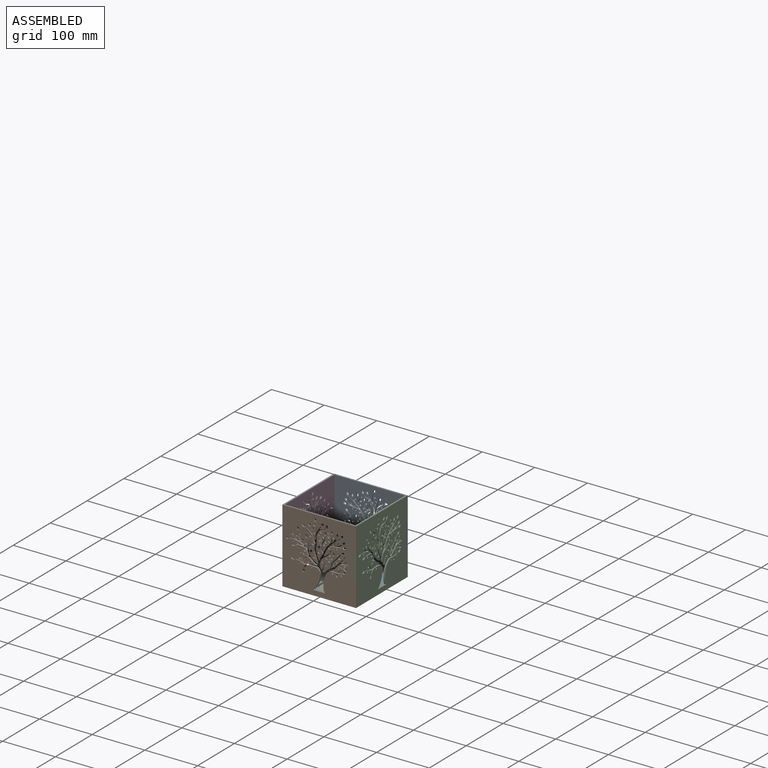
[diagram: assembled view]
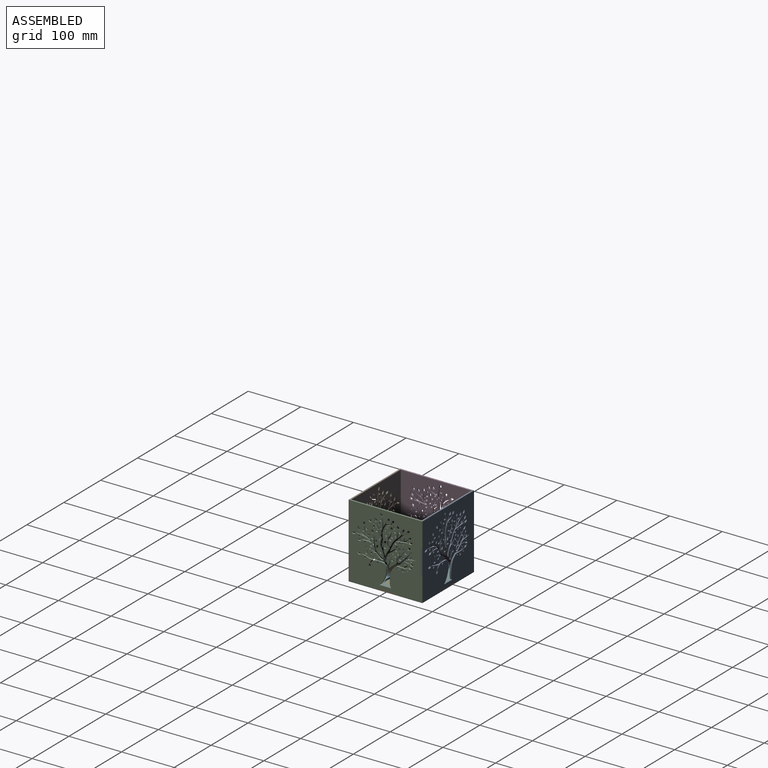
[diagram: assembled view, second angle]
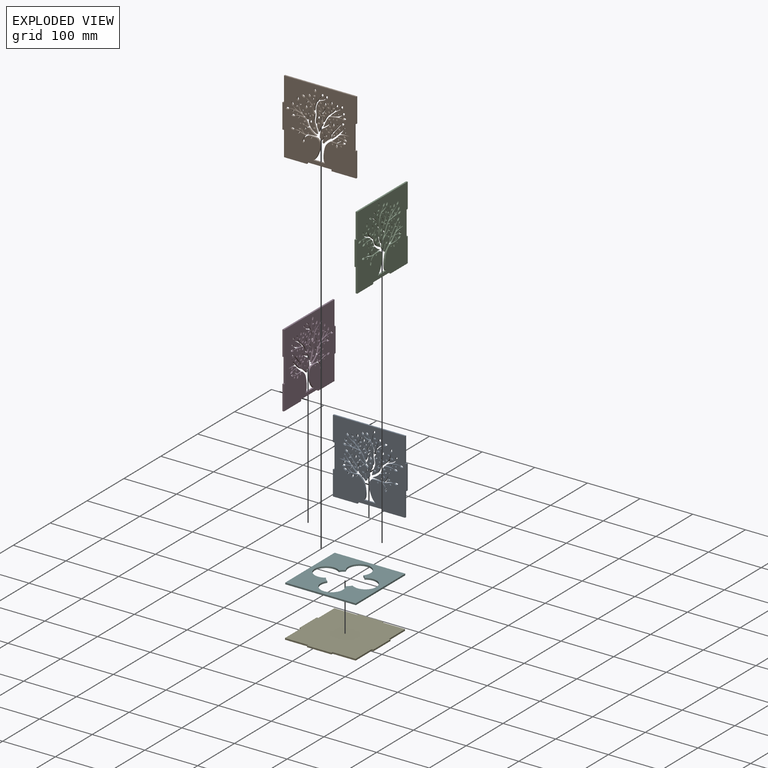
[diagram: exploded view]
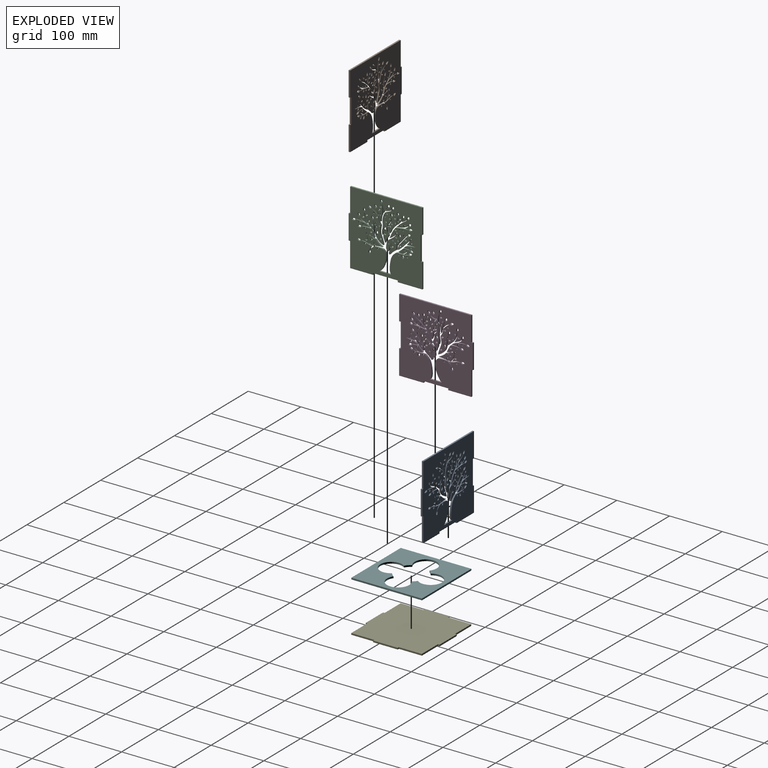
[diagram: exploded view, second angle]
ASSEMBLY  parts=6 mates=5
PART A: 459 faces, bbox 140.9x3.9x140.9 mm
  f0: plane 43.67x3mm, normal (0,0,-1), area 131mm2, adj f5,f6,f449,f455
  f1: plane 46.67x3mm, normal (0,0,-1), area 140mm2, adj f2,f5,f6,f450
  f2: plane 46.67x3mm, normal (1,0,0), area 140mm2, adj f1,f5,f6,f452
  f3: plane 137x3mm, normal (0,0,1), area 411.1mm2, adj f5,f6,f7,f458
  f4: plane 46.67x3mm, normal (-1,0,0), area 140mm2, adj f5,f6,f456,f457
  f5: plane 140.94x140.94mm, normal (0,1,0), area 16264.7mm2, adj f0,f1,f2,f3,f4,f7,f8,f9
  f6: plane 140.94x140.94mm, normal (0,-1,0), area 16264.7mm2, adj f0,f1,f2,f3,f4,f7,f8,f9
  f7: plane 46.67x3mm, normal (1,0,0), area 140mm2, adj f3,f5,f6,f453
  f8: plane 22.28x3mm, normal (0,0,1), area 66.8mm2, adj f5,f6,f9,f111
  f9: extruded ~40.23x12.65mm, area 135.4mm2, adj f5,f6,f8,f10
  f10: extruded ~23.3x3mm, area 71.7mm2, adj f5,f6,f9,f11
  f11: extruded ~8.66x3mm, area 26.6mm2, adj f5,f6,f10,f12
  f12: extruded ~6.19x5.5mm, area 25.3mm2, adj f5,f6,f11,f13
  f13: extruded ~7.73x5mm, area 27.6mm2, adj f5,f6,f12,f14
  f14: extruded ~9.4x3mm, area 29mm2, adj f5,f6,f13,f15
  f15: extruded ~9.97x8.71mm, area 39.8mm2, adj f5,f6,f14,f16
  f16: extruded ~12.2x3mm, area 36.7mm2, adj f5,f6,f15,f17
  f17: extruded ~11.38x3mm, area 35mm2, adj f5,f6,f16,f18
  f18: extruded ~22.06x6.69mm, area 71.1mm2, adj f5,f6,f17,f19
  f19: extruded ~16.68x3mm, area 50.2mm2, adj f5,f6,f18,f20
  f20: extruded ~8.61x5.69mm, area 31.1mm2, adj f5,f6,f19,f21
  f21: extruded ~22.88x21.66mm, area 94.9mm2, adj f5,f6,f20,f22
  f22: extruded ~8.98x3mm, area 28.3mm2, adj f5,f6,f21,f23
  f23: extruded ~19.17x16.04mm, area 75mm2, adj f5,f6,f22,f24
  f24: extruded ~15.61x15.07mm, area 65.9mm2, adj f5,f6,f23,f25
  f25: extruded ~8.88x3mm, area 26.8mm2, adj f5,f6,f24,f26
  f26: extruded ~14.17x3.97mm, area 44.7mm2, adj f5,f6,f25,f27
  f27: extruded ~8.78x4.98mm, area 31.3mm2, adj f5,f6,f26,f28
  f28: extruded ~17.08x3.3mm, area 53.8mm2, adj f5,f6,f27,f29
  f29: extruded ~12.63x11.01mm, area 50.5mm2, adj f5,f6,f28,f30
  f30: extruded ~3x2.39mm, area 9.4mm2, adj f5,f6,f29,f31
  f31: extruded ~17.76x4.62mm, area 55.5mm2, adj f5,f6,f30,f32
  f32: extruded ~7.74x3mm, area 25.2mm2, adj f5,f6,f31,f33
  f33: extruded ~3.95x3mm, area 12.6mm2, adj f5,f6,f32,f34
  f34: extruded ~11.94x3mm, area 37.9mm2, adj f5,f6,f33,f35
  f35: extruded ~5.12x3.73mm, area 19.4mm2, adj f5,f6,f34,f36
  f36: extruded ~27.92x18.38mm, area 106.5mm2, adj f5,f6,f35,f37
  f37: extruded ~11.59x9.17mm, area 44.9mm2, adj f5,f6,f36,f38
  f38: extruded ~20.39x11.12mm, area 70.1mm2, adj f5,f6,f37,f39
  f39: extruded ~25.62x3mm, area 77.4mm2, adj f5,f6,f38,f40
  f40: extruded ~6.92x3mm, area 21mm2, adj f5,f6,f39,f41
  f41: extruded ~5.79x5.08mm, area 23.6mm2, adj f5,f6,f40,f42
  f42: extruded ~22.45x6.98mm, area 71.2mm2, adj f5,f6,f41,f43
  f43: extruded ~19.93x17.49mm, area 80.2mm2, adj f5,f6,f42,f44
  f44: extruded ~10.24x6.33mm, area 36.5mm2, adj f5,f6,f43,f45
  f45: extruded ~5.62x3mm, area 17.9mm2, adj f5,f6,f44,f46
  f46: extruded ~12.68x9.57mm, area 47.8mm2, adj f5,f6,f45,f47
  f47: extruded ~15.11x3mm, area 45.9mm2, adj f5,f6,f46,f48
  f48: extruded ~9.34x3mm, area 28.4mm2, adj f5,f6,f47,f49
  f49: extruded ~8.58x4.44mm, area 29.4mm2, adj f5,f6,f48,f50
  f50: extruded ~16.28x3.45mm, area 51.4mm2, adj f5,f6,f49,f51
  f51: extruded ~16.9x12.53mm, area 63.9mm2, adj f5,f6,f50,f52
  f52: extruded ~13.63x3mm, area 42.5mm2, adj f5,f6,f51,f53
  f53: extruded ~15.28x5.42mm, area 49.6mm2, adj f5,f6,f52,f54
  f54: extruded ~12.97x5.73mm, area 42.7mm2, adj f5,f6,f53,f55
  f55: extruded ~9.53x5.63mm, area 34mm2, adj f5,f6,f54,f56
  f56: extruded ~14.55x3.82mm, area 45.8mm2, adj f5,f6,f55,f57
  f57: extruded ~6.19x4.73mm, area 23.8mm2, adj f5,f6,f56,f58
  f58: extruded ~6.55x5.63mm, area 26mm2, adj f5,f6,f57,f59
  f59: extruded ~12.13x3.18mm, area 38.9mm2, adj f5,f6,f58,f60
  f60: extruded ~3.39x3mm, area 10.9mm2, adj f5,f6,f59,f61
  f61: extruded ~11.8x5.77mm, area 39.9mm2, adj f5,f6,f60,f62
  f62: extruded ~8.45x3.46mm, area 27.4mm2, adj f5,f6,f61,f63
  f63: extruded ~12.4x3mm, area 37.5mm2, adj f5,f6,f62,f64
  f64: extruded ~8.21x3mm, area 26.4mm2, adj f5,f6,f63,f65
  f65: extruded ~8.28x3mm, area 25.3mm2, adj f5,f6,f64,f66
  f66: extruded ~30.06x4.8mm, area 92.8mm2, adj f5,f6,f65,f67
  f67: extruded ~13.58x8.58mm, area 49.3mm2, adj f5,f6,f66,f68
  f68: extruded ~11.89x4.77mm, area 38.7mm2, adj f5,f6,f67,f69
  f69: extruded ~6.81x3.25mm, area 22.7mm2, adj f5,f6,f68,f70
  f70: extruded ~11.43x7.51mm, area 41.2mm2, adj f5,f6,f69,f71
  f71: extruded ~21.61x3.03mm, area 117mm2, adj f5,f6,f70,f72
  f72: extruded ~13.53x3mm, area 41.5mm2, adj f5,f6,f71,f73
  f73: extruded ~11.26x3.98mm, area 36.1mm2, adj f5,f6,f72,f74
  f74: extruded ~12.5x4.47mm, area 40.1mm2, adj f5,f6,f73,f75
  f75: extruded ~11.06x3mm, area 34.1mm2, adj f5,f6,f74,f76
  f76: extruded ~4.04x4.02mm, area 17.2mm2, adj f5,f6,f75,f77
  f77: extruded ~8.22x4.22mm, area 27.8mm2, adj f5,f6,f76,f78
  f78: extruded ~12.54x10.78mm, area 49.9mm2, adj f5,f6,f77,f79
  f79: extruded ~13.55x5.38mm, area 44.4mm2, adj f5,f6,f78,f80
  f80: extruded ~14x3mm, area 42.4mm2, adj f5,f6,f79,f81
  f81: extruded ~19.07x6.28mm, area 60.3mm2, adj f5,f6,f80,f82
  f82: extruded ~17.23x15.96mm, area 74.2mm2, adj f5,f6,f81,f83
  f83: extruded ~18.98x3.42mm, area 59.4mm2, adj f5,f6,f82,f84
  f84: extruded ~4.82x4.15mm, area 19.4mm2, adj f5,f6,f83,f85
  f85: extruded ~7.31x3mm, area 23.2mm2, adj f5,f6,f84,f86
  f86: extruded ~18.63x3mm, area 56.3mm2, adj f5,f6,f85,f87
  f87: extruded ~9.01x7.99mm, area 36.1mm2, adj f5,f6,f86,f88
  f88: extruded ~19.55x8.76mm, area 65.1mm2, adj f5,f6,f87,f89
  f89: extruded ~18.3x5.55mm, area 59mm2, adj f5,f6,f88,f90
  f90: extruded ~15x7.79mm, area 51.3mm2, adj f5,f6,f89,f91
  f91: extruded ~7.7x6.66mm, area 31.3mm2, adj f5,f6,f90,f92
  f92: extruded ~15.1x3mm, area 45.9mm2, adj f5,f6,f91,f93
  f93: extruded ~18.61x3mm, area 56.3mm2, adj f5,f6,f92,f94
  f94: extruded ~8.68x4.77mm, area 30mm2, adj f5,f6,f93,f95
  f95: extruded ~16.12x3mm, area 49.5mm2, adj f5,f6,f94,f96
  f96: extruded ~18.27x3mm, area 55.1mm2, adj f5,f6,f95,f97
  f97: extruded ~13.06x7.11mm, area 44.7mm2, adj f5,f6,f96,f98
  f98: extruded ~7.57x3mm, area 23.1mm2, adj f5,f6,f97,f99
  f99: extruded ~6.21x3mm, area 19.8mm2, adj f5,f6,f98,f100
  f100: extruded ~3.35x3mm, area 13.4mm2, adj f5,f6,f99,f101
  f101: extruded ~6.1x3mm, area 19.2mm2, adj f5,f6,f100,f102
  f102: extruded ~13.82x10.29mm, area 52.1mm2, adj f5,f6,f101,f103
  f103: extruded ~22.95x3mm, area 69.1mm2, adj f5,f6,f102,f104
  f104: extruded ~14.62x6.51mm, area 48.6mm2, adj f5,f6,f103,f105
  f105: extruded ~14.21x4.39mm, area 45.8mm2, adj f5,f6,f104,f106
  f106: extruded ~16.5x3mm, area 51.1mm2, adj f5,f6,f105,f107
  f107: extruded ~22.75x4.04mm, area 70mm2, adj f5,f6,f106,f108
  f108: extruded ~8.29x5.61mm, area 31.5mm2, adj f5,f6,f107,f109
  f109: extruded ~8.97x8.52mm, area 37.6mm2, adj f5,f6,f108,f110
  f110: extruded ~17.66x3mm, area 53.3mm2, adj f5,f6,f109,f111
  f111: extruded ~39.07x12.75mm, area 132.2mm2, adj f5,f6,f8,f110
  f112: plane 3x0mm, normal (0,0,-1), area 0mm2, adj f5,f6,f113,f116
  f113: extruded ~7.19x3mm, area 24.2mm2, adj f5,f6,f112,f114
  f114: extruded ~3x1.75mm, area 11.5mm2, adj f5,f6,f113,f115
  f115: extruded ~4.46x3mm, area 13.7mm2, adj f5,f6,f114,f116
  f116: extruded ~3x2.61mm, area 10.5mm2, adj f5,f6,f112,f115
  f117: extruded ~3x2.16mm, area 6.7mm2, adj f5,f6,f118,f120
  f118: extruded ~3.42x3.12mm, area 15.5mm2, adj f5,f6,f117,f119
  f119: extruded ~3x1.22mm, area 7.4mm2, adj f5,f6,f118,f120
  f120: extruded ~3x2.33mm, area 8.8mm2, adj f5,f6,f117,f119
  f121: extruded ~3x1.79mm, area 6.7mm2, adj f5,f6,f122,f124
  f122: extruded ~4.6x3mm, area 15.5mm2, adj f5,f6,f121,f123
  f123: extruded ~3x1.1mm, area 7.4mm2, adj f5,f6,f122,f124
  f124: extruded ~3x2.83mm, area 8.8mm2, adj f5,f6,f121,f123
  f125: extruded ~3.18x3mm, area 10.5mm2, adj f5,f6,f126,f128
  f126: extruded ~6.22x3.84mm, area 24.2mm2, adj f5,f6,f125,f127
  f127: extruded ~3x1.81mm, area 11.5mm2, adj f5,f6,f126,f128
  f128: extruded ~4.1x3mm, area 13.7mm2, adj f5,f6,f125,f127
  f129: extruded ~3x2.04mm, area 6.7mm2, adj f5,f6,f130,f132
  f130: extruded ~3.98x3mm, area 15.5mm2, adj f5,f6,f129,f131
  f131: extruded ~3x1.16mm, area 7.4mm2, adj f5,f6,f130,f132
  f132: extruded ~3x2.63mm, area 8.8mm2, adj f5,f6,f129,f131
  f133: extruded ~3x2.05mm, area 6.7mm2, adj f5,f6,f134,f136
  f134: extruded ~3.97x3mm, area 15.5mm2, adj f5,f6,f133,f135
  f135: extruded ~3x1.16mm, area 7.4mm2, adj f5,f6,f134,f136
  f136: extruded ~3x2.62mm, area 8.8mm2, adj f5,f6,f133,f135
  f137: extruded ~3x2.05mm, area 6.7mm2, adj f5,f6,f138,f140
  f138: extruded ~3.97x3mm, area 15.5mm2, adj f5,f6,f137,f139
  f139: extruded ~3x1.16mm, area 7.4mm2, adj f5,f6,f138,f140
  f140: extruded ~3x2.62mm, area 8.8mm2, adj f5,f6,f137,f139
  f141: extruded ~3x2.18mm, area 6.7mm2, adj f5,f6,f142,f144
  f142: extruded ~3.58x3mm, area 15.5mm2, adj f5,f6,f141,f143
  f143: extruded ~3x1.25mm, area 7.4mm2, adj f5,f6,f142,f144
  f144: extruded ~3x2.05mm, area 8.8mm2, adj f5,f6,f141,f143
  f145: extruded ~3x2.05mm, area 6.7mm2, adj f5,f6,f146,f148
  f146: extruded ~3.97x3mm, area 15.5mm2, adj f5,f6,f145,f147
  f147: extruded ~3x1.16mm, area 7.4mm2, adj f5,f6,f146,f148
  f148: extruded ~3x2.62mm, area 8.8mm2, adj f5,f6,f145,f147
  f149: plane 3x0mm, normal (0,0,-1), area 0mm2, adj f5,f6,f150,f153
  f150: extruded ~7.19x3mm, area 24.2mm2, adj f5,f6,f149,f151
  f151: extruded ~3x1.75mm, area 11.5mm2, adj f5,f6,f150,f152
  f152: extruded ~4.46x3mm, area 13.7mm2, adj f5,f6,f151,f153
  f153: extruded ~3x2.61mm, area 10.5mm2, adj f5,f6,f149,f152
  f154: extruded ~3x1.66mm, area 6.7mm2, adj f5,f6,f155,f157
  f155: extruded ~4.54x3mm, area 15.5mm2, adj f5,f6,f154,f156
  f156: extruded ~3x1.17mm, area 7.4mm2, adj f5,f6,f155,f157
  f157: extruded ~3x2.87mm, area 8.8mm2, adj f5,f6,f154,f156
  f158: extruded ~3x2.04mm, area 6.7mm2, adj f5,f6,f159,f161
  f159: extruded ~4.37x3mm, area 15.5mm2, adj f5,f6,f158,f160
  f160: extruded ~3x1.22mm, area 7.4mm2, adj f5,f6,f159,f161
  f161: extruded ~3x2.61mm, area 8.8mm2, adj f5,f6,f158,f160
  f162: extruded ~3x2.17mm, area 6.7mm2, adj f5,f6,f163,f165
  f163: extruded ~3.75x3mm, area 15.5mm2, adj f5,f6,f162,f164
  f164: extruded ~3x1.26mm, area 7.4mm2, adj f5,f6,f163,f165
  f165: extruded ~3x2.14mm, area 8.8mm2, adj f5,f6,f162,f164
  f166: extruded ~3x2.01mm, area 6.7mm2, adj f5,f6,f167,f169
  f167: extruded ~4.42x3mm, area 15.5mm2, adj f5,f6,f166,f168
  f168: extruded ~3x1.21mm, area 7.4mm2, adj f5,f6,f167,f169
  f169: extruded ~3x2.65mm, area 8.8mm2, adj f5,f6,f166,f168
  f170: extruded ~3x2.02mm, area 6.7mm2, adj f5,f6,f171,f173
  f171: extruded ~4.4x3mm, area 15.5mm2, adj f5,f6,f170,f172
  f172: extruded ~3x1.21mm, area 7.4mm2, adj f5,f6,f171,f173
  f173: extruded ~3x2.64mm, area 8.8mm2, adj f5,f6,f170,f172
  f174: extruded ~3x1.74mm, area 6.7mm2, adj f5,f6,f175,f177
  f175: extruded ~4.61x3mm, area 15.5mm2, adj f5,f6,f174,f176
  f176: extruded ~3x1.1mm, area 7.4mm2, adj f5,f6,f175,f177
  f177: extruded ~3x2.84mm, area 8.8mm2, adj f5,f6,f174,f176
  f178: extruded ~3x1.95mm, area 6.7mm2, adj f5,f6,f179,f181
  f179: extruded ~4.2x3mm, area 15.5mm2, adj f5,f6,f178,f180
  f180: extruded ~3x1.18mm, area 7.4mm2, adj f5,f6,f179,f181
  f181: extruded ~3x2.74mm, area 8.8mm2, adj f5,f6,f178,f180
  f182: extruded ~3x2.01mm, area 6.7mm2, adj f5,f6,f183,f185
  f183: extruded ~4.42x3mm, area 15.5mm2, adj f5,f6,f182,f184
  f184: extruded ~3x1.21mm, area 7.4mm2, adj f5,f6,f183,f185
  f185: extruded ~3x2.65mm, area 8.8mm2, adj f5,f6,f182,f184
  f186: extruded ~3x1.72mm, area 6.7mm2, adj f5,f6,f187,f189
  f187: extruded ~4.61x3mm, area 15.5mm2, adj f5,f6,f186,f188
  f188: extruded ~3x1.11mm, area 7.4mm2, adj f5,f6,f187,f189
  f189: extruded ~3x2.85mm, area 8.8mm2, adj f5,f6,f186,f188
  f190: plane 3x0mm, normal (0,0,-1), area 0mm2, adj f191,f194
  f191: extruded ~7.19x3mm, area 24.2mm2, adj f5,f6,f190,f192
  f192: extruded ~3x1.75mm, area 11.5mm2, adj f5,f6,f191,f193
  f193: extruded ~4.46x3mm, area 13.7mm2, adj f5,f6,f192,f194
  f194: extruded ~3x2.61mm, area 10.5mm2, adj f5,f6,f190,f193
  f195: extruded ~3x1.81mm, area 6.7mm2, adj f5,f6,f196,f198
  f196: extruded ~4.42x3mm, area 15.5mm2, adj f5,f6,f195,f197
  f197: extruded ~3x1.18mm, area 7.4mm2, adj f5,f6,f196,f198
  f198: extruded ~3x2.83mm, area 8.8mm2, adj f5,f6,f195,f197
  f199: plane 3x0mm, normal (-0.84,0,-0.55), area 0mm2, adj f200,f203
  f200: extruded ~6.26x3.78mm, area 24.2mm2, adj f5,f6,f199,f201
  f201: extruded ~3x1.81mm, area 11.5mm2, adj f5,f6,f200,f202
  f202: extruded ~4.12x3mm, area 13.7mm2, adj f5,f6,f201,f203
  f203: extruded ~3.17x3mm, area 10.5mm2, adj f5,f6,f199,f202
  f204: extruded ~6.31x3.29mm, area 23.3mm2, adj f5,f6,f205,f207
  f205: plane 3x0.33mm, normal (0,0,-1), area 1mm2, adj f5,f6,f204,f206
  f206: extruded ~6.86x3mm, area 23.9mm2, adj f5,f6,f205,f207
  f207: extruded ~3x1.84mm, area 11.5mm2, adj f5,f6,f204,f206
  f208: plane 3x0mm, normal (-0.75,0,-0.66), area 0mm2, adj f5,f6,f209,f212
  f209: extruded ~5.32x4.87mm, area 24.2mm2, adj f5,f6,f208,f210
  f210: extruded ~3x1.9mm, area 11.5mm2, adj f5,f6,f209,f211
  f211: extruded ~3.63x3mm, area 13.7mm2, adj f5,f6,f210,f212
  f212: extruded ~3.36x3mm, area 10.5mm2, adj f5,f6,f208,f211
  f213: extruded ~3x2.17mm, area 6.7mm2, adj f5,f6,f214,f216
  f214: extruded ~3.75x3mm, area 15.5mm2, adj f5,f6,f213,f215
  f215: extruded ~3x1.26mm, area 7.4mm2, adj f5,f6,f214,f216
  f216: extruded ~3x2.14mm, area 8.8mm2, adj f5,f6,f213,f215
  f217: extruded ~3x2.04mm, area 6.7mm2, adj f5,f6,f218,f220
  f218: extruded ~4.37x3mm, area 15.5mm2, adj f5,f6,f217,f219
  f219: extruded ~3x1.22mm, area 7.4mm2, adj f5,f6,f218,f220
  f220: extruded ~3x2.61mm, area 8.8mm2, adj f5,f6,f217,f219
  f221: extruded ~3x1.95mm, area 6.7mm2, adj f5,f6,f222,f224
  f222: extruded ~4.2x3mm, area 15.5mm2, adj f5,f6,f221,f223
  f223: extruded ~3x1.18mm, area 7.4mm2, adj f5,f6,f222,f224
  f224: extruded ~3x2.74mm, area 8.8mm2, adj f5,f6,f221,f223
  f225: extruded ~3x2.11mm, area 6.7mm2, adj f5,f6,f226,f228
  f226: extruded ~3.75x3mm, area 15.5mm2, adj f5,f6,f225,f227
  f227: extruded ~3x1.18mm, area 7.4mm2, adj f5,f6,f226,f228
  f228: extruded ~3x2.51mm, area 8.8mm2, adj f5,f6,f225,f227
  f229: extruded ~3x2.14mm, area 6.7mm2, adj f5,f6,f230,f232
  f230: extruded ~4.05x3mm, area 15.5mm2, adj f5,f6,f229,f231
  f231: extruded ~3x1.25mm, area 7.4mm2, adj f5,f6,f230,f232
  f232: extruded ~3x2.36mm, area 8.8mm2, adj f5,f6,f229,f231
  f233: extruded ~3x2.18mm, area 6.7mm2, adj f5,f6,f234,f236
  f234: extruded ~3.42x3.12mm, area 15.5mm2, adj f5,f6,f233,f235
  f235: extruded ~3x1.24mm, area 7.4mm2, adj f5,f6,f234,f236
  f236: extruded ~3x2.16mm, area 8.8mm2, adj f5,f6,f233,f235
  f237: extruded ~3x2.15mm, area 6.7mm2, adj f5,f6,f238,f240
  f238: extruded ~3.97x3mm, area 15.5mm2, adj f5,f6,f237,f239
  f239: extruded ~3x1.26mm, area 7.4mm2, adj f5,f6,f238,f240
  f240: extruded ~3x2.31mm, area 8.8mm2, adj f5,f6,f237,f239
  f241: extruded ~3x1.78mm, area 6.7mm2, adj f5,f6,f242,f244
  f242: extruded ~4.45x3mm, area 15.5mm2, adj f5,f6,f241,f243
  f243: extruded ~3x1.18mm, area 7.4mm2, adj f5,f6,f242,f244
  f244: extruded ~3x2.84mm, area 8.8mm2, adj f5,f6,f241,f243
  f245: extruded ~3x1.79mm, area 6.7mm2, adj f5,f6,f246,f248
  f246: extruded ~4.6x3mm, area 15.5mm2, adj f5,f6,f245,f247
  f247: extruded ~3x1.1mm, area 7.4mm2, adj f5,f6,f246,f248
  f248: extruded ~3x2.83mm, area 8.8mm2, adj f5,f6,f245,f247
  f249: extruded ~3.38x3mm, area 10.5mm2, adj f5,f6,f250,f252
  f250: extruded ~5.95x4.17mm, area 24.2mm2, adj f5,f6,f249,f251
  f251: extruded ~3x1.96mm, area 11.5mm2, adj f5,f6,f250,f252
  f252: extruded ~3.42x3mm, area 13.7mm2, adj f5,f6,f249,f251
  f253: extruded ~3x1.91mm, area 6.7mm2, adj f5,f6,f254,f256
  f254: extruded ~4.53x3mm, area 15.5mm2, adj f5,f6,f253,f255
  f255: extruded ~3x1.16mm, area 7.4mm2, adj f5,f6,f254,f256
  f256: extruded ~3x2.75mm, area 8.8mm2, adj f5,f6,f253,f255
  f257: extruded ~3x2.07mm, area 6.7mm2, adj f5,f6,f258,f260
  f258: extruded ~4.3x3mm, area 15.5mm2, adj f5,f6,f257,f259
  f259: extruded ~3x1.23mm, area 7.4mm2, adj f5,f6,f258,f260
  f260: extruded ~3x2.55mm, area 8.8mm2, adj f5,f6,f257,f259
  f261: extruded ~3x2.56mm, area 10.5mm2, adj f5,f6,f262,f264
  f262: extruded ~7.09x3mm, area 24.2mm2, adj f5,f6,f261,f263
  f263: extruded ~3x1.82mm, area 11.5mm2, adj f5,f6,f262,f264
  f264: extruded ~4.48x3mm, area 13.7mm2, adj f5,f6,f261,f263
  f265: extruded ~3x2.07mm, area 6.7mm2, adj f5,f6,f266,f268
  f266: extruded ~4.3x3mm, area 15.5mm2, adj f5,f6,f265,f267
  f267: extruded ~3x1.23mm, area 7.4mm2, adj f5,f6,f266,f268
  f268: extruded ~3x2.55mm, area 8.8mm2, adj f5,f6,f265,f267
  f269: extruded ~3x1.81mm, area 11.5mm2, adj f5,f6,f270,f271
  f270: extruded ~6.76x3mm, area 24.2mm2, adj f5,f6,f269,f271
  f271: extruded ~7.11x3mm, area 24.2mm2, adj f5,f6,f269,f270
  f272: extruded ~3x1.73mm, area 6.7mm2, adj f5,f6,f273,f275
  f273: extruded ~4.5x3mm, area 15.5mm2, adj f5,f6,f272,f274
  f274: extruded ~3x1.18mm, area 7.4mm2, adj f5,f6,f273,f275
  f275: extruded ~3x2.86mm, area 8.8mm2, adj f5,f6,f272,f274
  f276: extruded ~3x2.07mm, area 6.7mm2, adj f5,f6,f277,f279
  f277: extruded ~4.3x3mm, area 15.5mm2, adj f5,f6,f276,f278
  f278: extruded ~3x1.23mm, area 7.4mm2, adj f5,f6,f277,f279
  f279: extruded ~3x2.55mm, area 8.8mm2, adj f5,f6,f276,f278
  f280: extruded ~3x1.95mm, area 6.7mm2, adj f5,f6,f281,f283
  f281: extruded ~4.2x3mm, area 15.5mm2, adj f5,f6,f280,f282
  f282: extruded ~3x1.18mm, area 7.4mm2, adj f5,f6,f281,f283
  f283: extruded ~3x2.74mm, area 8.8mm2, adj f5,f6,f280,f282
  f284: extruded ~3x2.06mm, area 6.7mm2, adj f5,f6,f285,f287
  f285: extruded ~3.92x3mm, area 15.5mm2, adj f5,f6,f284,f286
  f286: extruded ~3x1.15mm, area 7.4mm2, adj f5,f6,f285,f287
  f287: extruded ~3x2.6mm, area 8.8mm2, adj f5,f6,f284,f286
  f288: extruded ~3x2.17mm, area 6.7mm2, adj f5,f6,f289,f291
  f289: extruded ~3.83x3mm, area 15.5mm2, adj f5,f6,f288,f290
  f290: extruded ~3x1.26mm, area 7.4mm2, adj f5,f6,f289,f291
  f291: extruded ~3x2.2mm, area 8.8mm2, adj f5,f6,f288,f290
  f292: extruded ~3x2.18mm, area 6.7mm2, adj f5,f6,f293,f295
  f293: extruded ~3.45x3.09mm, area 15.5mm2, adj f5,f6,f292,f294
  f294: extruded ~3x1.25mm, area 7.4mm2, adj f5,f6,f293,f295
  f295: extruded ~3x2.14mm, area 8.8mm2, adj f5,f6,f292,f294
  f296: plane 3x0mm, normal (1,0,0), area 0mm2, adj f297,f300
  f297: extruded ~7.03x3mm, area 24.2mm2, adj f5,f6,f296,f298
  f298: extruded ~3x1.83mm, area 11.5mm2, adj f5,f6,f297,f299
  f299: extruded ~4.26x3mm, area 13.7mm2, adj f5,f6,f298,f300
  f300: extruded ~3.02x3mm, area 10.5mm2, adj f5,f6,f296,f299
  f301: extruded ~3x1.94mm, area 6.7mm2, adj f5,f6,f302,f304
  f302: extruded ~4.5x3mm, area 15.5mm2, adj f5,f6,f301,f303
  f303: extruded ~3x1.18mm, area 7.4mm2, adj f5,f6,f302,f304
  f304: extruded ~3x2.72mm, area 8.8mm2, adj f5,f6,f301,f303
  f305: extruded ~3x1.73mm, area 6.7mm2, adj f5,f6,f306,f308
  f306: extruded ~4.5x3mm, area 15.5mm2, adj f5,f6,f305,f307
  f307: extruded ~3x1.18mm, area 7.4mm2, adj f5,f6,f306,f308
  f308: extruded ~3x2.86mm, area 8.8mm2, adj f5,f6,f305,f307
  f309: extruded ~3x2.15mm, area 6.7mm2, adj f5,f6,f310,f312
  f310: extruded ~3.45x3.09mm, area 15.5mm2, adj f5,f6,f309,f311
  f311: extruded ~3x1.22mm, area 7.4mm2, adj f5,f6,f310,f312
  f312: extruded ~3x2.35mm, area 8.8mm2, adj f5,f6,f309,f311
  f313: extruded ~3x2.77mm, area 10.5mm2, adj f5,f6,f314,f316
  f314: extruded ~6.94x3mm, area 24.2mm2, adj f5,f6,f313,f315
  f315: extruded ~3x1.84mm, area 11.5mm2, adj f5,f6,f314,f316
  f316: extruded ~4.43x3mm, area 13.7mm2, adj f5,f6,f313,f315
  f317: extruded ~3x1.91mm, area 6.7mm2, adj f5,f6,f318,f320
  f318: extruded ~4.53x3mm, area 15.5mm2, adj f5,f6,f317,f319
  f319: extruded ~3x1.16mm, area 7.4mm2, adj f5,f6,f318,f320
  f320: extruded ~3x2.75mm, area 8.8mm2, adj f5,f6,f317,f319
  f321: extruded ~3x2.04mm, area 6.7mm2, adj f5,f6,f322,f324
  f322: extruded ~3.98x3mm, area 15.5mm2, adj f5,f6,f321,f323
  f323: extruded ~3x1.16mm, area 7.4mm2, adj f5,f6,f322,f324
  f324: extruded ~3x2.63mm, area 8.8mm2, adj f5,f6,f321,f323
  f325: extruded ~3x2.68mm, area 10.5mm2, adj f5,f6,f326,f328
  f326: extruded ~7.01x3mm, area 24.2mm2, adj f5,f6,f325,f327
  f327: extruded ~3x1.83mm, area 11.5mm2, adj f5,f6,f326,f328
  f328: extruded ~4.46x3mm, area 13.7mm2, adj f5,f6,f325,f327
  f329: extruded ~3x2.61mm, area 10.5mm2, adj f5,f6,f330,f332
  f330: extruded ~7.19x3mm, area 24.2mm2, adj f5,f6,f329,f331
  f331: extruded ~3x1.75mm, area 11.5mm2, adj f5,f6,f330,f332
  f332: extruded ~4.46x3mm, area 13.7mm2, adj f5,f6,f329,f331
  f333: extruded ~3x1.63mm, area 6.7mm2, adj f5,f6,f334,f336
  f334: extruded ~4.56x3mm, area 15.5mm2, adj f5,f6,f333,f335
  f335: extruded ~3x1.17mm, area 7.4mm2, adj f5,f6,f334,f336
  f336: extruded ~3x2.87mm, area 8.8mm2, adj f5,f6,f333,f335
  f337: extruded ~3x1.78mm, area 6.7mm2, adj f5,f6,f338,f340
  f338: extruded ~4.45x3mm, area 15.5mm2, adj f5,f6,f337,f339
  f339: extruded ~3x1.18mm, area 7.4mm2, adj f5,f6,f338,f340
  f340: extruded ~3x2.84mm, area 8.8mm2, adj f5,f6,f337,f339
  f341: extruded ~3x2.14mm, area 6.7mm2, adj f5,f6,f342,f344
  f342: extruded ~4.04x3mm, area 15.5mm2, adj f5,f6,f341,f343
  f343: extruded ~3x1.25mm, area 7.4mm2, adj f5,f6,f342,f344
  f344: extruded ~3x2.36mm, area 8.8mm2, adj f5,f6,f341,f343
  f345: extruded ~3x2.01mm, area 6.7mm2, adj f5,f6,f346,f348
  f346: extruded ~4.42x3mm, area 15.5mm2, adj f5,f6,f345,f347
  f347: extruded ~3x1.21mm, area 7.4mm2, adj f5,f6,f346,f348
  f348: extruded ~3x2.65mm, area 8.8mm2, adj f5,f6,f345,f347
  f349: extruded ~3x2.04mm, area 6.7mm2, adj f5,f6,f350,f352
  f350: extruded ~4.37x3mm, area 15.5mm2, adj f5,f6,f349,f351
  f351: extruded ~3x1.22mm, area 7.4mm2, adj f5,f6,f350,f352
  f352: extruded ~3x2.61mm, area 8.8mm2, adj f5,f6,f349,f351
  f353: extruded ~3x1.82mm, area 6.7mm2, adj f5,f6,f354,f356
  f354: extruded ~4.58x3mm, area 15.5mm2, adj f5,f6,f353,f355
  f355: extruded ~3x1.12mm, area 7.4mm2, adj f5,f6,f354,f356
  f356: extruded ~3x2.81mm, area 8.8mm2, adj f5,f6,f353,f355
  f357: extruded ~3x1.63mm, area 6.7mm2, adj f5,f6,f358,f360
  f358: extruded ~4.56x3mm, area 15.5mm2, adj f5,f6,f357,f359
  f359: extruded ~3x1.17mm, area 7.4mm2, adj f5,f6,f358,f360
  f360: extruded ~3x2.87mm, area 8.8mm2, adj f5,f6,f357,f359
  f361: extruded ~3x2.16mm, area 6.7mm2, adj f5,f6,f362,f364
  f362: extruded ~3.95x3mm, area 15.5mm2, adj f5,f6,f361,f363
  f363: extruded ~3x1.26mm, area 7.4mm2, adj f5,f6,f362,f364
  f364: extruded ~3x2.29mm, area 8.8mm2, adj f5,f6,f361,f363
  f365: extruded ~3x2.18mm, area 6.7mm2, adj f5,f6,f366,f368
  f366: extruded ~3.42x3.12mm, area 15.5mm2, adj f5,f6,f365,f367
  f367: extruded ~3x1.24mm, area 7.4mm2, adj f5,f6,f366,f368
  f368: extruded ~3x2.16mm, area 8.8mm2, adj f5,f6,f365,f367
  f369: plane 3x0mm, normal (-0.33,0,-0.94), area 0mm2, adj f5,f6,f370,f373
  f370: extruded ~5.83x4.32mm, area 24.2mm2, adj f5,f6,f369,f371
  f371: extruded ~3x1.96mm, area 11.5mm2, adj f5,f6,f370,f372
  f372: extruded ~3.33x3mm, area 13.7mm2, adj f5,f6,f371,f373
  f373: extruded ~3.39x3mm, area 10.5mm2, adj f5,f6,f369,f372
  f374: plane 3x0mm, normal (-0.93,0,0.36), area 0mm2, adj f375,f378
  f375: extruded ~6.53x3.39mm, area 24.2mm2, adj f5,f6,f374,f376
  f376: extruded ~3x1.94mm, area 11.5mm2, adj f5,f6,f375,f377
  f377: extruded ~3.84x3mm, area 13.7mm2, adj f5,f6,f376,f378
  f378: extruded ~3.29x3mm, area 10.5mm2, adj f5,f6,f374,f377
  f379: extruded ~3x1.83mm, area 11.5mm2, adj f5,f6,f380,f381
  f380: extruded ~6.54x3.35mm, area 24.2mm2, adj f5,f6,f379,f381
  f381: extruded ~7.01x3mm, area 24.2mm2, adj f5,f6,f379,f380
  f382: extruded ~3x1.78mm, area 6.7mm2, adj f5,f6,f383,f385
  f383: extruded ~4.45x3mm, area 15.5mm2, adj f5,f6,f382,f384
  f384: extruded ~3x1.18mm, area 7.4mm2, adj f5,f6,f383,f385
  f385: extruded ~3x2.84mm, area 8.8mm2, adj f5,f6,f382,f384
  f386: extruded ~3x1.91mm, area 6.7mm2, adj f5,f6,f387,f389
  f387: extruded ~4.28x3mm, area 15.5mm2, adj f5,f6,f386,f388
  f388: extruded ~3x1.18mm, area 7.4mm2, adj f5,f6,f387,f389
  f389: extruded ~3x2.77mm, area 8.8mm2, adj f5,f6,f386,f388
  f390: plane 3x0mm, normal (-0.3,0,0.95), area 0mm2, adj f391,f394
  f391: extruded ~7.03x3mm, area 24.2mm2, adj f5,f6,f390,f392
  f392: extruded ~3x1.83mm, area 11.5mm2, adj f5,f6,f391,f393
  f393: extruded ~4.46x3mm, area 13.7mm2, adj f5,f6,f392,f394
  f394: extruded ~3x2.65mm, area 10.5mm2, adj f5,f6,f390,f393
  f395: extruded ~3x1.9mm, area 6.7mm2, adj f5,f6,f396,f398
  f396: extruded ~4.3x3mm, area 15.5mm2, adj f5,f6,f395,f397
  f397: extruded ~3x1.18mm, area 7.4mm2, adj f5,f6,f396,f398
  f398: extruded ~3x2.78mm, area 8.8mm2, adj f5,f6,f395,f397
  f399: extruded ~3x1.78mm, area 6.7mm2, adj f5,f6,f400,f402
  f400: extruded ~4.45x3mm, area 15.5mm2, adj f5,f6,f399,f401
  f401: extruded ~3x1.18mm, area 7.4mm2, adj f5,f6,f400,f402
  f402: extruded ~3x2.84mm, area 8.8mm2, adj f5,f6,f399,f401
  f403: plane 3x1.93mm, normal (-0.06,0,1), area 5.8mm2, adj f5,f6,f404,f406
  f404: extruded ~6.97x3mm, area 24.2mm2, adj f5,f6,f403,f405
  f405: extruded ~6.23x3.82mm, area 24.2mm2, adj f5,f6,f404,f406
  f406: plane 3x1.39mm, normal (-0.76,0,-0.65), area 5.5mm2, adj f5,f6,f403,f405
  f407: extruded ~3x2.15mm, area 6.7mm2, adj f5,f6,f408,f410
  f408: extruded ~3.43x3.11mm, area 15.5mm2, adj f5,f6,f407,f409
  f409: extruded ~3x1.22mm, area 7.4mm2, adj f5,f6,f408,f410
  f410: extruded ~3x2.34mm, area 8.8mm2, adj f5,f6,f407,f409
  f411: extruded ~3x2.18mm, area 6.7mm2, adj f5,f6,f412,f414
  f412: extruded ~3.42x3.12mm, area 15.5mm2, adj f5,f6,f411,f413
  f413: extruded ~3x1.24mm, area 7.4mm2, adj f5,f6,f412,f414
  f414: extruded ~3x2.16mm, area 8.8mm2, adj f5,f6,f411,f413
  f415: extruded ~3x2.18mm, area 6.7mm2, adj f5,f6,f416,f418
  f416: extruded ~3.42x3.12mm, area 15.5mm2, adj f5,f6,f415,f417
  f417: extruded ~3x1.24mm, area 7.4mm2, adj f5,f6,f416,f418
  f418: extruded ~3x2.16mm, area 8.8mm2, adj f5,f6,f415,f417
  f419: plane 3x0mm, normal (-1,0,-0.07), area 0mm2, adj f5,f6,f420,f423
  f420: extruded ~7.14x3mm, area 24.2mm2, adj f5,f6,f419,f421
  f421: extruded ~3x1.8mm, area 11.5mm2, adj f5,f6,f420,f422
  f422: extruded ~4.48x3mm, area 13.7mm2, adj f5,f6,f421,f423
  f423: extruded ~3x2.46mm, area 10.5mm2, adj f5,f6,f419,f422
  f424: plane 3x0mm, normal (-0.84,0,-0.55), area 0mm2, adj f5,f6,f425,f428
  f425: extruded ~5.75x4.43mm, area 24.2mm2, adj f5,f6,f424,f426
  f426: extruded ~3x1.85mm, area 11.5mm2, adj f5,f6,f425,f427
  f427: extruded ~3.86x3mm, area 13.7mm2, adj f5,f6,f426,f428
  f428: extruded ~3.3x3mm, area 10.5mm2, adj f5,f6,f424,f427
  f429: plane 3x0mm, normal (-0.73,0,-0.68), area 0mm2, adj f5,f6,f430,f433
  f430: extruded ~5.15x5.05mm, area 24.2mm2, adj f5,f6,f429,f431
  f431: extruded ~3x1.93mm, area 11.5mm2, adj f5,f6,f430,f432
  f432: extruded ~3.47x3mm, area 13.7mm2, adj f5,f6,f431,f433
  f433: extruded ~3.38x3mm, area 10.5mm2, adj f5,f6,f429,f432
  f434: plane 3x0mm, normal (-0.6,0,-0.8), area 0mm2, adj f5,f6,f435,f438
  f435: extruded ~6.26x3.77mm, area 24.2mm2, adj f5,f6,f434,f436
  f436: extruded ~3x1.96mm, area 11.5mm2, adj f5,f6,f435,f437
  f437: extruded ~3.65x3mm, area 13.7mm2, adj f5,f6,f436,f438
  f438: extruded ~3.34x3mm, area 10.5mm2, adj f5,f6,f434,f437
  f439: plane 3x0mm, normal (-0.63,0,-0.78), area 0mm2, adj f5,f6,f440,f443
  f440: extruded ~5.45x4.73mm, area 24.2mm2, adj f5,f6,f439,f441
  f441: extruded ~3x1.95mm, area 11.5mm2, adj f5,f6,f440,f442
  f442: extruded ~3.28x3.06mm, area 13.7mm2, adj f5,f6,f441,f443
  f443: extruded ~3.4x3mm, area 10.5mm2, adj f5,f6,f439,f442
  f444: plane 3x0mm, normal (0,0,1), area 0mm2, adj f5,f6,f445,f448
  f445: extruded ~6.97x3mm, area 24.2mm2, adj f5,f6,f444,f446
  f446: extruded ~3x1.85mm, area 11.5mm2, adj f5,f6,f445,f447
  f447: extruded ~4.2x3mm, area 13.7mm2, adj f5,f6,f446,f448
  f448: extruded ~3.07x3mm, area 10.5mm2, adj f5,f6,f444,f447
  f449: plane 3x3mm, normal (1,0,0), area 9mm2, adj f0,f5,f6,f451
  f450: plane 3x3mm, normal (-1,0,0), area 9mm2, adj f1,f5,f6,f451
  f451: plane 46.67x3mm, normal (0,0,-1), area 140mm2, adj f5,f6,f449,f450
  f452: plane 3x3mm, normal (0,0,1), area 9mm2, adj f2,f5,f6,f454
  f453: plane 3x3mm, normal (0,0,-1), area 9mm2, adj f5,f6,f7,f454
  f454: plane 46.67x3mm, normal (1,0,0), area 140mm2, adj f5,f6,f452,f453
  f455: plane 46.67x3mm, normal (-1,0,0), area 140mm2, adj f0,f5,f6,f456
  f456: plane 3x3mm, normal (0,0,-1), area 9mm2, adj f4,f5,f6,f455
  f457: plane 3x3mm, normal (0,0,1), area 9mm2, adj f4,f5,f6,f458
  f458: plane 46.67x3mm, normal (-1,0,0), area 140mm2, adj f3,f5,f6,f457
PART B: same geometry as A
PART C: same geometry as A
PART D: same geometry as A
PART E: 22 faces, bbox 140x3x140 mm
  f0: plane 3x3mm, normal (0,0,-1), area 9mm2, adj f1,f19,f20,f21
  f1: plane 43.67x3mm, normal (-1,0,0), area 131mm2, adj f0,f2,f20,f21
  f2: plane 43.67x3mm, normal (0,0,-1), area 131mm2, adj f1,f3,f20,f21
  f3: plane 3x3mm, normal (-1,0,0), area 9mm2, adj f2,f4,f20,f21
  f4: plane 46.67x3mm, normal (0,0,-1), area 140mm2, adj f3,f5,f20,f21
  f5: plane 3x3mm, normal (1,0,0), area 9mm2, adj f4,f6,f20,f21
  f6: plane 43.67x3mm, normal (0,0,-1), area 131mm2, adj f5,f7,f20,f21
  f7: plane 43.67x3mm, normal (1,0,0), area 131mm2, adj f6,f8,f20,f21
  f8: plane 3x3mm, normal (0,0,-1), area 9mm2, adj f7,f9,f20,f21
  f9: plane 46.67x3mm, normal (1,0,0), area 140mm2, adj f8,f10,f20,f21
  f10: plane 3x3mm, normal (0,0,1), area 9mm2, adj f9,f11,f20,f21
  f11: plane 43.67x3mm, normal (1,0,0), area 131mm2, adj f10,f12,f20,f21
  f12: plane 43.67x3mm, normal (0,0,1), area 131mm2, adj f11,f13,f20,f21
  f13: plane 3x3mm, normal (1,0,0), area 9mm2, adj f12,f14,f20,f21
  f14: plane 46.67x3mm, normal (0,0,1), area 140mm2, adj f13,f15,f20,f21
  f15: plane 3x3mm, normal (-1,0,0), area 9mm2, adj f14,f16,f20,f21
  f16: plane 43.67x3mm, normal (0,0,1), area 131mm2, adj f15,f17,f20,f21
  f17: plane 43.67x3mm, normal (-1,0,0), area 131mm2, adj f16,f18,f20,f21
  f18: plane 3x3mm, normal (0,0,1), area 9mm2, adj f17,f19,f20,f21
  f19: plane 46.67x3mm, normal (-1,0,0), area 140mm2, adj f0,f18,f20,f21
  f20: plane 140x140mm, normal (0,-1,0), area 18516mm2, adj f0,f1,f2,f3,f4,f5,f6,f7
  f21: plane 140x140mm, normal (0,1,0), area 18516mm2, adj f0,f1,f2,f3,f4,f5,f6,f7
PART F: 14 faces, bbox 134x3x134 mm
  f0: plane 134x3mm, normal (1,0,0), area 402mm2, adj f1,f11,f12,f13
  f1: plane 134x3mm, normal (0,0,1), area 402mm2, adj f0,f2,f12,f13
  f2: plane 134x3mm, normal (-1,0,0), area 402mm2, adj f1,f11,f12,f13
  f3: cylinder r=30mm len=7.07mm, axis (0,1,0), area 30mm2, adj f4,f10,f12,f13
  f4: cylinder r=21mm len=42mm, axis (0,1,0), area 279.2mm2, adj f3,f5,f12,f13
  f5: cylinder r=30mm len=8.11mm, axis (0,1,0), area 33.8mm2, adj f4,f6,f12,f13
  f6: cylinder r=21mm len=42mm, axis (0,1,0), area 279.2mm2, adj f5,f7,f12,f13
  f7: cylinder r=30mm len=9.18mm, axis (0,1,0), area 39.1mm2, adj f6,f8,f12,f13
  f8: cylinder r=21mm len=42mm, axis (0,1,0), area 279.2mm2, adj f7,f9,f12,f13
  f9: cylinder r=30mm len=8.47mm, axis (0,1,0), area 35.3mm2, adj f8,f10,f12,f13
  f10: cylinder r=21mm len=42mm, axis (0,1,0), area 279.2mm2, adj f3,f9,f12,f13
  f11: plane 134x3mm, normal (0,0,-1), area 402mm2, adj f0,f2,f12,f13
  f12: plane 134x134mm, normal (0,-1,0), area 10839.3mm2, adj f0,f1,f2,f3,f4,f5,f6,f7
  f13: plane 134x134mm, normal (0,1,0), area 10839.3mm2, adj f0,f1,f2,f3,f4,f5,f6,f7
PLACE A rot(axis=(0,0,1),180deg) t=(-0.79,70,68.9)mm
PLACE B t=(0.79,-70,68.9)mm
PLACE C rot(axis=(0,0,1),90deg) t=(70,0.79,68.9)mm
PLACE D rot(axis=(0,0,-1),90deg) t=(-70,-0.79,68.9)mm
PLACE E rot(axis=(1,0,0),90deg) t=(0.79,1.1,3)mm
PLACE F rot(axis=(1,0,0),90deg) t=(0.96,1.34,6)mm
MATE fastened F.f12 <-> E.f21  axis (0,0,-1) through (0,0,3)mm
MATE fastened D.f457 <-> A.f453  axis (0,0,1) through (-68.5,68.5,93.33)mm
MATE fastened B.f457 <-> D.f453  axis (0,0,1) through (-68.5,-68.5,93.33)mm
MATE fastened C.f453 <-> A.f457  axis (0,0,-1) through (68.5,68.5,93.33)mm
MATE fastened B.f449 <-> E.f15  axis (1,0,0) through (-23.33,-68.5,1.5)mm
